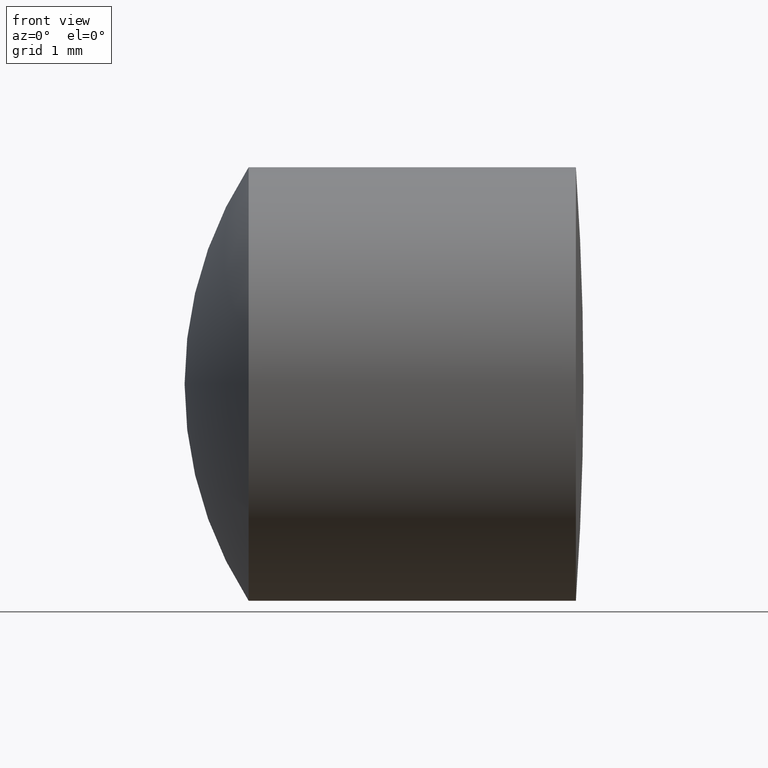
[diagram: clean part render]
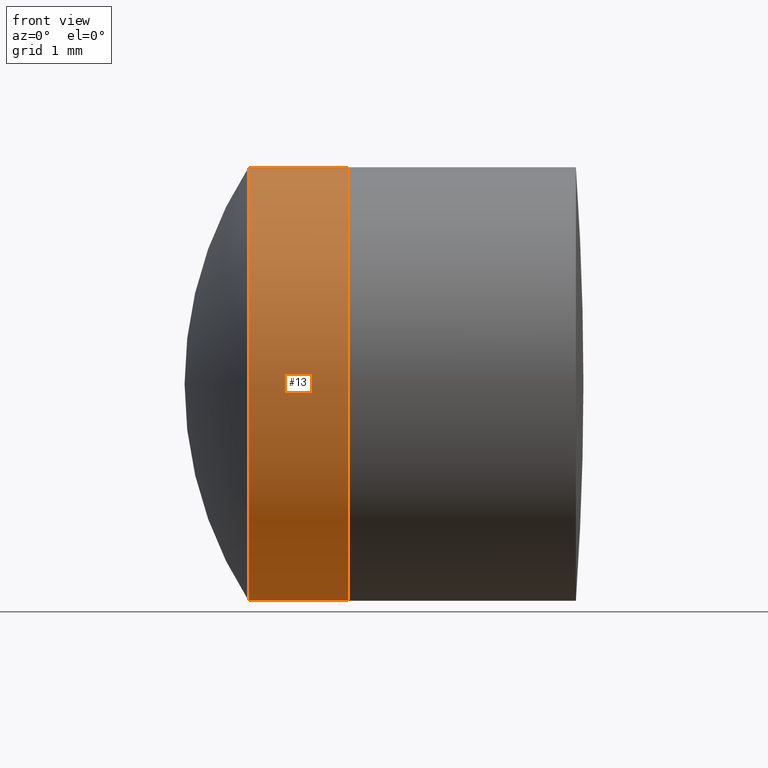
[diagram: same view with one face highlighted and labeled with its STEP entity id]
A machine part, front view. The second image highlights one B-rep face of the part: STEP entity #13.
In plain terms, the highlighted cylindrical surface (partial cylindrical patch) has radius 2.5 mm, axis along (-1, -0, -0).
Its self-contained STEP definition (entity closure, byte-faithful):
#7 = DIRECTION ( 'NONE',  ( -1.000000000000000000, -0.0000000000000000000, -0.0000000000000000000 ) ) ;
#13 = ADVANCED_FACE ( 'NONE', ( #20 ), #307, .T. ) ;
#20 = FACE_OUTER_BOUND ( 'NONE', #228, .T. ) ;
#25 = VERTEX_POINT ( 'NONE', #278 ) ;
#31 = ORIENTED_EDGE ( 'NONE', *, *, #170, .F. ) ;
#32 = CARTESIAN_POINT ( 'NONE',  ( 257.4708021428207900, 0.0000000000000000000, -2.500000000000000400 ) ) ;
#34 = EDGE_CURVE ( 'NONE', #108, #25, #139, .T. ) ;
#50 = AXIS2_PLACEMENT_3D ( 'NONE', #310, #300, #283 ) ;
#56 = AXIS2_PLACEMENT_3D ( 'NONE', #242, #240, #258 ) ;
#61 = CARTESIAN_POINT ( 'NONE',  ( 124.5233095260452400, 3.061616997868383100E-016, -2.500000000000000000 ) ) ;
#63 = ORIENTED_EDGE ( 'NONE', *, *, #98, .F. ) ;
#77 = ORIENTED_EDGE ( 'NONE', *, *, #34, .T. ) ;
#95 = DIRECTION ( 'NONE',  ( 0.0000000000000000000, 0.0000000000000000000, 1.000000000000000000 ) ) ;
#97 = DIRECTION ( 'NONE',  ( -1.000000000000000000, -0.0000000000000000000, -0.0000000000000000000 ) ) ;
#98 = EDGE_CURVE ( 'NONE', #208, #340, #149, .T. ) ;
#101 = LINE ( 'NONE', #306, #140 ) ;
#108 = VERTEX_POINT ( 'NONE', #175 ) ;
#114 = LINE ( 'NONE', #61, #345 ) ;
#139 = CIRCLE ( 'NONE', #56, 2.499999999999999600 ) ;
#140 = VECTOR ( 'NONE', #311, 1000.000000000000000 ) ;
#149 = CIRCLE ( 'NONE', #165, 2.500000000000000400 ) ;
#165 = AXIS2_PLACEMENT_3D ( 'NONE', #182, #97, #95 ) ;
#168 = CARTESIAN_POINT ( 'NONE',  ( 257.4708021428207900, -3.061616997868383100E-016, 2.500000000000000400 ) ) ;
#170 = EDGE_CURVE ( 'NONE', #108, #208, #114, .T. ) ;
#175 = CARTESIAN_POINT ( 'NONE',  ( 258.6254749675014800, 3.061616997868383100E-016, -2.499999999999999600 ) ) ;
#182 = CARTESIAN_POINT ( 'NONE',  ( 257.4708021428207900, 0.0000000000000000000, 0.0000000000000000000 ) ) ;
#208 = VERTEX_POINT ( 'NONE', #32 ) ;
#228 = EDGE_LOOP ( 'NONE', ( #31, #77, #323, #63 ) ) ;
#240 = DIRECTION ( 'NONE',  ( -1.000000000000000000, -0.0000000000000000000, -0.0000000000000000000 ) ) ;
#242 = CARTESIAN_POINT ( 'NONE',  ( 258.6254749675014800, 0.0000000000000000000, 0.0000000000000000000 ) ) ;
#258 = DIRECTION ( 'NONE',  ( 0.0000000000000000000, 0.0000000000000000000, 1.000000000000000000 ) ) ;
#278 = CARTESIAN_POINT ( 'NONE',  ( 258.6254749675014800, 0.0000000000000000000, 2.499999999999999600 ) ) ;
#283 = DIRECTION ( 'NONE',  ( 0.0000000000000000000, 0.0000000000000000000, 1.000000000000000000 ) ) ;
#287 = EDGE_CURVE ( 'NONE', #25, #340, #101, .T. ) ;
#300 = DIRECTION ( 'NONE',  ( -1.000000000000000000, -0.0000000000000000000, -0.0000000000000000000 ) ) ;
#306 = CARTESIAN_POINT ( 'NONE',  ( 124.5233095260452400, 0.0000000000000000000, 2.500000000000000000 ) ) ;
#307 = CYLINDRICAL_SURFACE ( 'NONE', #50, 2.500000000000000000 ) ;
#310 = CARTESIAN_POINT ( 'NONE',  ( 124.5233095260452400, 0.0000000000000000000, 0.0000000000000000000 ) ) ;
#311 = DIRECTION ( 'NONE',  ( -1.000000000000000000, -0.0000000000000000000, -0.0000000000000000000 ) ) ;
#323 = ORIENTED_EDGE ( 'NONE', *, *, #287, .T. ) ;
#340 = VERTEX_POINT ( 'NONE', #168 ) ;
#345 = VECTOR ( 'NONE', #7, 1000.000000000000000 ) ;